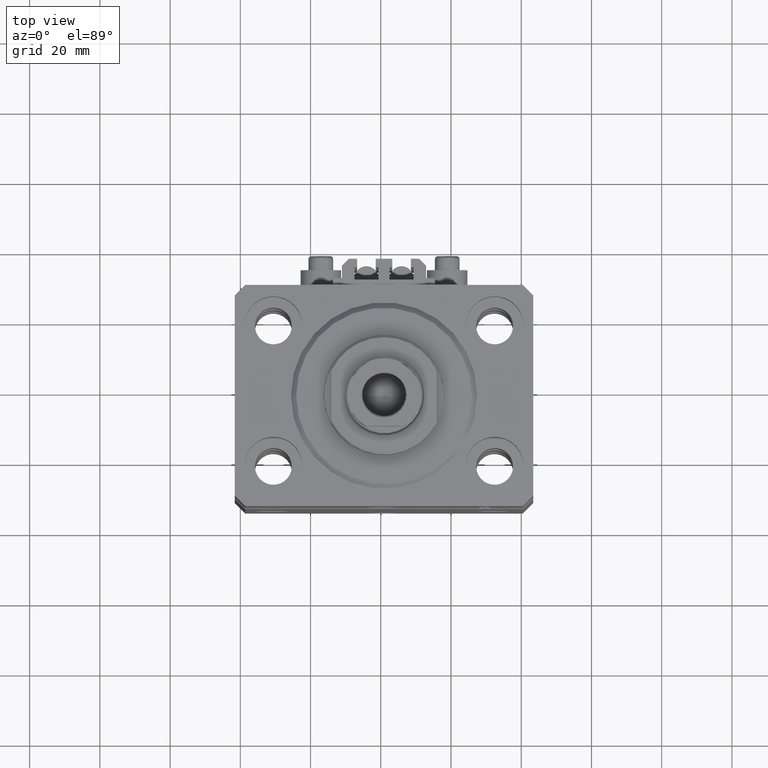
[diagram: clean part render]
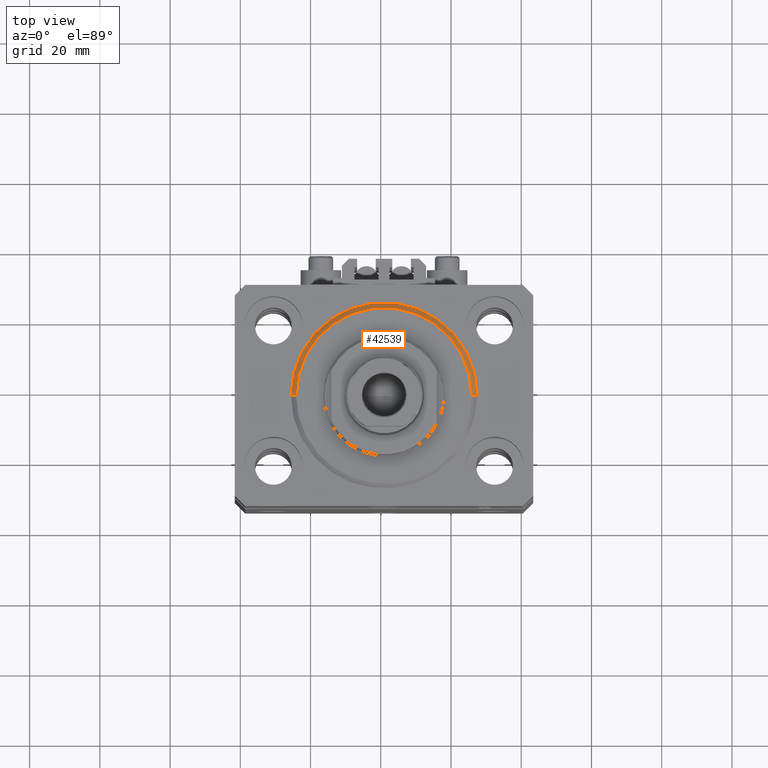
[diagram: same view with one face highlighted and labeled with its STEP entity id]
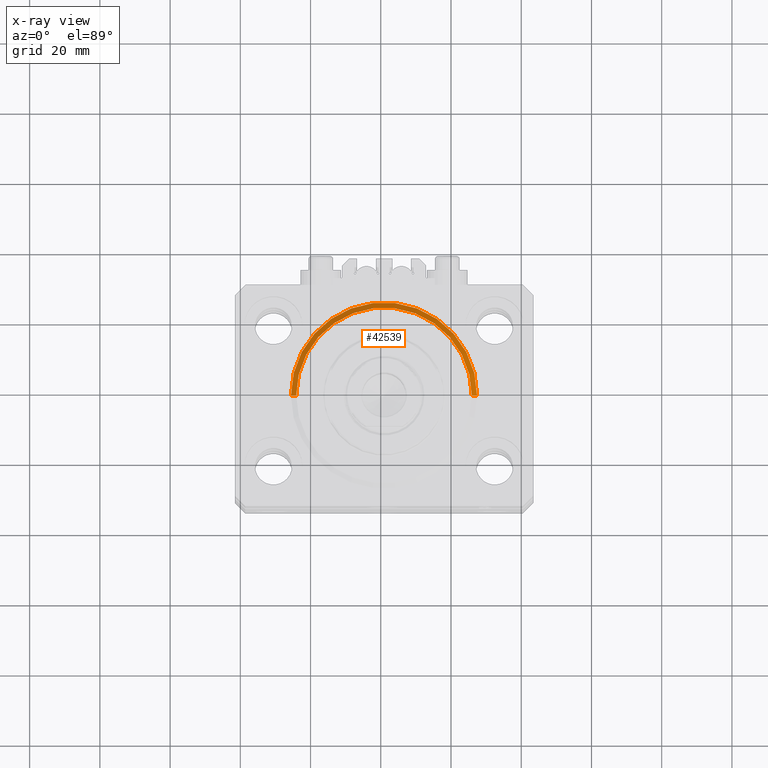
[diagram: x-ray of the same camera — body ghosted, the highlighted face saturated]
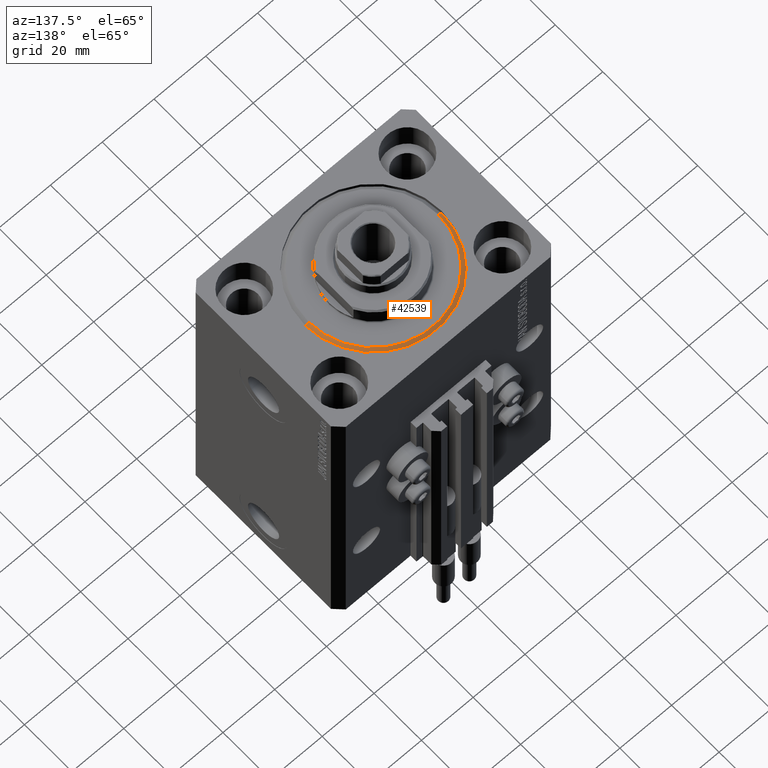
[diagram: same view with one face highlighted and labeled with its STEP entity id]
A machine part, top view. The second image highlights one B-rep face of the part: STEP entity #42539.
The next image is the same camera in x-ray: the body ghosted, the highlighted face saturated — about 0% of this face is hidden behind the body in this view.
A second angle (auxiliary view) of the same face is appended — the face is thin or edge-on in the first view.
In plain terms, the highlighted conical surface has half-angle 45 deg.
Its self-contained STEP definition (entity closure, byte-faithful):
#3183 = CARTESIAN_POINT ( 'NONE',  ( -24.99999999999998224, 3.153465507804433615E-15, 0.000000000000000000 ) ) ;
#3809 = AXIS2_PLACEMENT_3D ( 'NONE', #22390, #11149, #14398 ) ;
#4219 = VECTOR ( 'NONE', #45399, 1000.000000000000000 ) ;
#4906 = DIRECTION ( 'NONE',  ( 1.000000000000000000, 0.000000000000000000, 0.000000000000000000 ) ) ;
#8065 = ORIENTED_EDGE ( 'NONE', *, *, #24705, .F. ) ;
#9883 = VERTEX_POINT ( 'NONE', #3183 ) ;
#10635 = EDGE_CURVE ( 'NONE', #9883, #26067, #32439, .T. ) ;
#11149 = DIRECTION ( 'NONE',  ( -0.000000000000000000, -0.000000000000000000, 1.000000000000000000 ) ) ;
#14200 = CONICAL_SURFACE ( 'NONE', #3809, 26.50000000000000355, 0.7853981633974495002 ) ;
#14398 = DIRECTION ( 'NONE',  ( 1.000000000000000000, 0.000000000000000000, 0.000000000000000000 ) ) ;
#15378 = FACE_OUTER_BOUND ( 'NONE', #44268, .T. ) ;
#17187 = AXIS2_PLACEMENT_3D ( 'NONE', #21724, #26466, #41721 ) ;
#19546 = AXIS2_PLACEMENT_3D ( 'NONE', #23908, #20399, #4906 ) ;
#20399 = DIRECTION ( 'NONE',  ( -0.000000000000000000, -0.000000000000000000, -1.000000000000000000 ) ) ;
#21724 = CARTESIAN_POINT ( 'NONE',  ( 0.000000000000000000, 0.000000000000000000, 1.500000000000018652 ) ) ;
#22010 = CIRCLE ( 'NONE', #17187, 26.50000000000000355 ) ;
#22128 = CARTESIAN_POINT ( 'NONE',  ( 26.50000000000000355, 3.245314017740486554E-15, 1.500000000000018652 ) ) ;
#22197 = VECTOR ( 'NONE', #40455, 1000.000000000000000 ) ;
#22390 = CARTESIAN_POINT ( 'NONE',  ( 0.000000000000000000, 0.000000000000000000, 1.500000000000018652 ) ) ;
#22972 = VERTEX_POINT ( 'NONE', #45105 ) ;
#23908 = CARTESIAN_POINT ( 'NONE',  ( 0.000000000000000000, 0.000000000000000000, 0.000000000000000000 ) ) ;
#24705 = EDGE_CURVE ( 'NONE', #22972, #39305, #34385, .T. ) ;
#26067 = VERTEX_POINT ( 'NONE', #33703 ) ;
#26466 = DIRECTION ( 'NONE',  ( -0.000000000000000000, -0.000000000000000000, 1.000000000000000000 ) ) ;
#32055 = EDGE_CURVE ( 'NONE', #9883, #22972, #38681, .T. ) ;
#32439 = LINE ( 'NONE', #36694, #22197 ) ;
#33703 = CARTESIAN_POINT ( 'NONE',  ( -26.50000000000000355, 0.000000000000000000, 1.500000000000018652 ) ) ;
#34385 = LINE ( 'NONE', #42127, #4219 ) ;
#35042 = ORIENTED_EDGE ( 'NONE', *, *, #32055, .F. ) ;
#35352 = ORIENTED_EDGE ( 'NONE', *, *, #37696, .F. ) ;
#36694 = CARTESIAN_POINT ( 'NONE',  ( -26.50000000000000355, 3.245314017740486554E-15, 1.500000000000018652 ) ) ;
#36696 = ORIENTED_EDGE ( 'NONE', *, *, #10635, .T. ) ;
#37696 = EDGE_CURVE ( 'NONE', #39305, #26067, #22010, .T. ) ;
#38681 = CIRCLE ( 'NONE', #19546, 24.99999999999998224 ) ;
#39305 = VERTEX_POINT ( 'NONE', #22128 ) ;
#40455 = DIRECTION ( 'NONE',  ( -0.7071067811865483499, 8.659560562354942719E-17, 0.7071067811865466846 ) ) ;
#41721 = DIRECTION ( 'NONE',  ( 1.000000000000000000, 0.000000000000000000, 0.000000000000000000 ) ) ;
#42127 = CARTESIAN_POINT ( 'NONE',  ( 26.50000000000000355, 0.000000000000000000, 1.500000000000018652 ) ) ;
#42539 = ADVANCED_FACE ( 'NONE', ( #15378 ), #14200, .T. ) ;
#44268 = EDGE_LOOP ( 'NONE', ( #35042, #36696, #35352, #8065 ) ) ;
#45105 = CARTESIAN_POINT ( 'NONE',  ( 24.99999999999998224, 0.000000000000000000, 0.000000000000000000 ) ) ;
#45399 = DIRECTION ( 'NONE',  ( 0.7071067811865483499, 0.000000000000000000, 0.7071067811865466846 ) ) ;